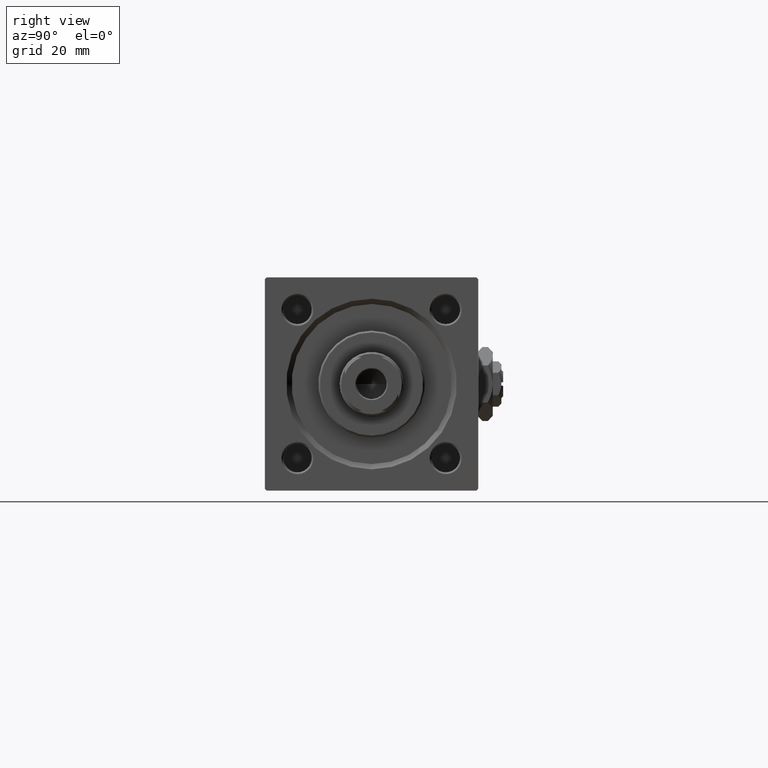
[diagram: clean part render]
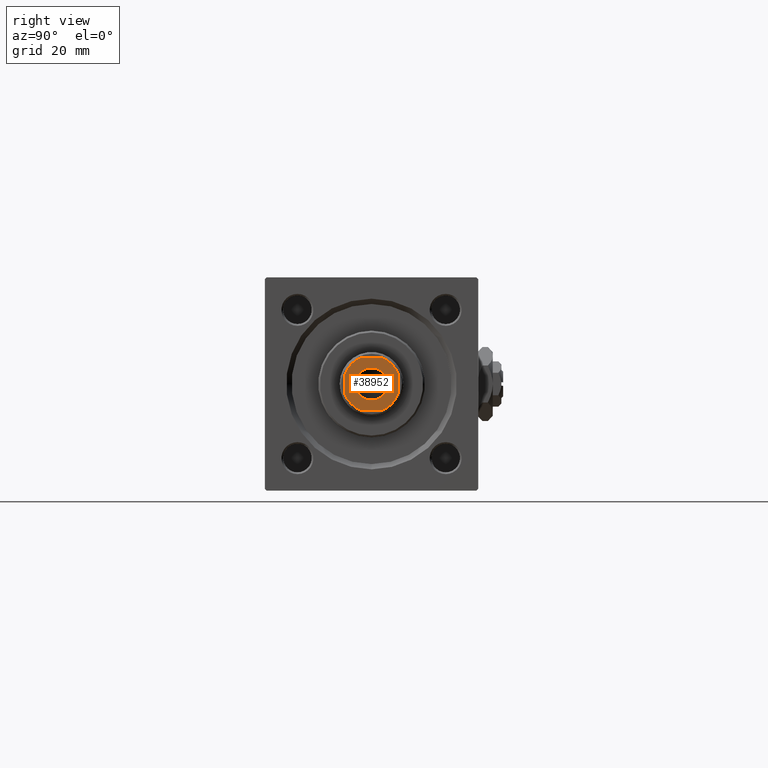
[diagram: same view with one face highlighted and labeled with its STEP entity id]
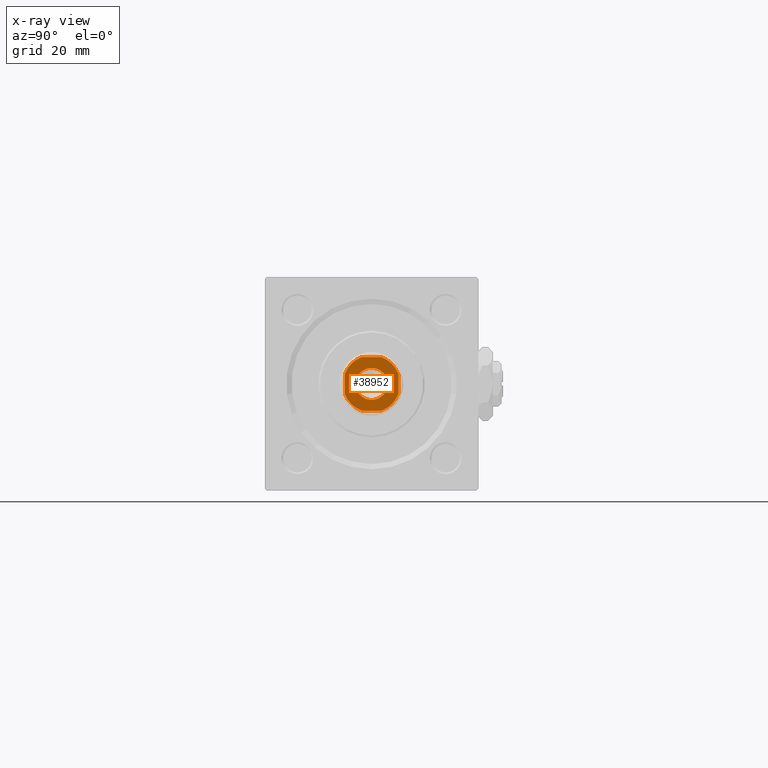
[diagram: x-ray of the same camera — body ghosted, the highlighted face saturated]
A machine part, right view. The second image highlights one B-rep face of the part: STEP entity #38952.
The next image is the same camera in x-ray: the body ghosted, the highlighted face saturated — about 0% of this face is hidden behind the body in this view.
In plain terms, the highlighted planar face has unit normal (1, 0, 0).
Its self-contained STEP definition (entity closure, byte-faithful):
#1006 = DIRECTION ( 'NONE',  ( -0.000000000000000000, 0.000000000000000000, 1.000000000000000000 ) ) ;
#1893 = ORIENTED_EDGE ( 'NONE', *, *, #3704, .T. ) ;
#2255 = EDGE_LOOP ( 'NONE', ( #24796, #1893 ) ) ;
#2456 = VERTEX_POINT ( 'NONE', #40442 ) ;
#2732 = EDGE_CURVE ( 'NONE', #38630, #2456, #28243, .T. ) ;
#3162 = VECTOR ( 'NONE', #30431, 1000.000000000000000 ) ;
#3699 = EDGE_CURVE ( 'NONE', #31487, #21301, #17294, .T. ) ;
#3704 = EDGE_CURVE ( 'NONE', #15670, #38517, #36739, .T. ) ;
#4021 = ORIENTED_EDGE ( 'NONE', *, *, #7168, .T. ) ;
#4225 = VERTEX_POINT ( 'NONE', #42927 ) ;
#4701 = DIRECTION ( 'NONE',  ( 1.000000000000000000, 0.000000000000000000, 0.000000000000000000 ) ) ;
#5310 = DIRECTION ( 'NONE',  ( 1.000000000000000000, 0.000000000000000000, 0.000000000000000000 ) ) ;
#6630 = LINE ( 'NONE', #14309, #3162 ) ;
#7096 = DIRECTION ( 'NONE',  ( 1.000000000000000000, 0.000000000000000000, 0.000000000000000000 ) ) ;
#7105 = VECTOR ( 'NONE', #44812, 1000.000000000000000 ) ;
#7168 = EDGE_CURVE ( 'NONE', #21301, #20116, #38637, .T. ) ;
#7310 = AXIS2_PLACEMENT_3D ( 'NONE', #44757, #16484, #41050 ) ;
#9022 = VERTEX_POINT ( 'NONE', #38795 ) ;
#9232 = FACE_BOUND ( 'NONE', #2255, .T. ) ;
#9633 = CARTESIAN_POINT ( 'NONE',  ( -2.783882181414960577, 7.499999999999999112, 136.0000000000000000 ) ) ;
#9745 = PLANE ( 'NONE',  #47915 ) ;
#10829 = ORIENTED_EDGE ( 'NONE', *, *, #45287, .T. ) ;
#10970 = AXIS2_PLACEMENT_3D ( 'NONE', #11409, #39421, #47881 ) ;
#11409 = CARTESIAN_POINT ( 'NONE',  ( 0.000000000000000000, 0.000000000000000000, 136.0000000000000000 ) ) ;
#12111 = CARTESIAN_POINT ( 'NONE',  ( -7.499999999999998224, -7.500000000000000000, 136.0000000000000000 ) ) ;
#12267 = AXIS2_PLACEMENT_3D ( 'NONE', #33888, #50003, #13809 ) ;
#12827 = ORIENTED_EDGE ( 'NONE', *, *, #38152, .T. ) ;
#12839 = CARTESIAN_POINT ( 'NONE',  ( 7.500000000000000000, 7.500000000000000000, 136.0000000000000000 ) ) ;
#13449 = CARTESIAN_POINT ( 'NONE',  ( -2.783882181414952139, -7.500000000000000000, 136.0000000000000000 ) ) ;
#13809 = DIRECTION ( 'NONE',  ( 1.000000000000000000, 0.000000000000000000, 0.000000000000000000 ) ) ;
#14309 = CARTESIAN_POINT ( 'NONE',  ( -7.500000000000000000, 7.499999999999998224, 136.0000000000000000 ) ) ;
#14800 = ORIENTED_EDGE ( 'NONE', *, *, #27835, .T. ) ;
#14807 = ORIENTED_EDGE ( 'NONE', *, *, #2732, .T. ) ;
#15670 = VERTEX_POINT ( 'NONE', #40595 ) ;
#16012 = LINE ( 'NONE', #12839, #7105 ) ;
#16135 = CARTESIAN_POINT ( 'NONE',  ( 2.783882181415129331, 7.499999999999999112, 136.0000000000000000 ) ) ;
#16352 = CIRCLE ( 'NONE', #31513, 4.549999999999970512 ) ;
#16484 = DIRECTION ( 'NONE',  ( -0.000000000000000000, 0.000000000000000000, 1.000000000000000000 ) ) ;
#17294 = CIRCLE ( 'NONE', #35057, 8.000000000000040856 ) ;
#17763 = EDGE_CURVE ( 'NONE', #51947, #38630, #45573, .T. ) ;
#19003 = CARTESIAN_POINT ( 'NONE',  ( 0.000000000000000000, 0.000000000000000000, 136.0000000000000000 ) ) ;
#20116 = VERTEX_POINT ( 'NONE', #9633 ) ;
#21301 = VERTEX_POINT ( 'NONE', #16135 ) ;
#21705 = ORIENTED_EDGE ( 'NONE', *, *, #3699, .T. ) ;
#21729 = CIRCLE ( 'NONE', #42803, 8.000000000000042633 ) ;
#24462 = EDGE_LOOP ( 'NONE', ( #14800, #21705, #4021, #10829, #40899, #49374, #14807, #12827 ) ) ;
#24796 = ORIENTED_EDGE ( 'NONE', *, *, #27129, .T. ) ;
#25413 = DIRECTION ( 'NONE',  ( 1.000000000000000000, 0.000000000000000000, 0.000000000000000000 ) ) ;
#25866 = CARTESIAN_POINT ( 'NONE',  ( 0.000000000000000000, 0.000000000000000000, 136.0000000000000000 ) ) ;
#25892 = CIRCLE ( 'NONE', #7310, 7.999999999999981348 ) ;
#27129 = EDGE_CURVE ( 'NONE', #38517, #15670, #16352, .T. ) ;
#27835 = EDGE_CURVE ( 'NONE', #9022, #31487, #16012, .T. ) ;
#28243 = LINE ( 'NONE', #12111, #41760 ) ;
#29928 = DIRECTION ( 'NONE',  ( -1.000000000000000000, -1.156482317317871478E-16, -0.000000000000000000 ) ) ;
#30431 = DIRECTION ( 'NONE',  ( 1.156482317317871725E-16, -1.000000000000000000, 0.000000000000000000 ) ) ;
#31487 = VERTEX_POINT ( 'NONE', #43092 ) ;
#31513 = AXIS2_PLACEMENT_3D ( 'NONE', #45745, #33850, #25413 ) ;
#33260 = DIRECTION ( 'NONE',  ( 1.000000000000000000, 0.000000000000000000, 0.000000000000000000 ) ) ;
#33850 = DIRECTION ( 'NONE',  ( 0.000000000000000000, -0.000000000000000000, -1.000000000000000000 ) ) ;
#33888 = CARTESIAN_POINT ( 'NONE',  ( 0.000000000000000000, 0.000000000000000000, 136.0000000000000000 ) ) ;
#34247 = CARTESIAN_POINT ( 'NONE',  ( -7.499999999999997335, -2.783882181414957468, 136.0000000000000000 ) ) ;
#34305 = CARTESIAN_POINT ( 'NONE',  ( 4.549999999999970512, 0.000000000000000000, 136.0000000000000000 ) ) ;
#35057 = AXIS2_PLACEMENT_3D ( 'NONE', #19003, #41802, #7096 ) ;
#36739 = CIRCLE ( 'NONE', #12267, 4.549999999999970512 ) ;
#37539 = DIRECTION ( 'NONE',  ( -0.000000000000000000, 0.000000000000000000, 1.000000000000000000 ) ) ;
#38152 = EDGE_CURVE ( 'NONE', #2456, #9022, #21729, .T. ) ;
#38372 = CARTESIAN_POINT ( 'NONE',  ( -7.500000000000000000, 7.499999999999998224, 136.0000000000000000 ) ) ;
#38517 = VERTEX_POINT ( 'NONE', #34305 ) ;
#38630 = VERTEX_POINT ( 'NONE', #13449 ) ;
#38637 = LINE ( 'NONE', #38372, #39383 ) ;
#38795 = CARTESIAN_POINT ( 'NONE',  ( 7.500000000000000888, -2.783882181415129331, 136.0000000000000000 ) ) ;
#38952 = ADVANCED_FACE ( 'NONE', ( #9232, #41192 ), #9745, .T. ) ;
#39383 = VECTOR ( 'NONE', #29928, 1000.000000000000000 ) ;
#39421 = DIRECTION ( 'NONE',  ( -0.000000000000000000, 0.000000000000000000, 1.000000000000000000 ) ) ;
#40442 = CARTESIAN_POINT ( 'NONE',  ( 2.783882181415132440, -7.500000000000000000, 136.0000000000000000 ) ) ;
#40595 = CARTESIAN_POINT ( 'NONE',  ( -4.549999999999970512, 5.572142936120421828E-16, 136.0000000000000000 ) ) ;
#40899 = ORIENTED_EDGE ( 'NONE', *, *, #47583, .T. ) ;
#41050 = DIRECTION ( 'NONE',  ( 1.000000000000000000, 0.000000000000000000, 0.000000000000000000 ) ) ;
#41192 = FACE_OUTER_BOUND ( 'NONE', #24462, .T. ) ;
#41760 = VECTOR ( 'NONE', #4701, 1000.000000000000000 ) ;
#41802 = DIRECTION ( 'NONE',  ( -0.000000000000000000, 0.000000000000000000, 1.000000000000000000 ) ) ;
#42803 = AXIS2_PLACEMENT_3D ( 'NONE', #46532, #37539, #5310 ) ;
#42927 = CARTESIAN_POINT ( 'NONE',  ( -7.499999999999999112, 2.783882181414961021, 136.0000000000000000 ) ) ;
#43092 = CARTESIAN_POINT ( 'NONE',  ( 7.500000000000000888, 2.783882181415126222, 136.0000000000000000 ) ) ;
#44757 = CARTESIAN_POINT ( 'NONE',  ( 0.000000000000000000, 0.000000000000000000, 136.0000000000000000 ) ) ;
#44812 = DIRECTION ( 'NONE',  ( -1.156482317317871478E-16, 1.000000000000000000, -0.000000000000000000 ) ) ;
#45287 = EDGE_CURVE ( 'NONE', #20116, #4225, #25892, .T. ) ;
#45573 = CIRCLE ( 'NONE', #10970, 7.999999999999979572 ) ;
#45745 = CARTESIAN_POINT ( 'NONE',  ( 0.000000000000000000, 0.000000000000000000, 136.0000000000000000 ) ) ;
#46532 = CARTESIAN_POINT ( 'NONE',  ( 0.000000000000000000, 0.000000000000000000, 136.0000000000000000 ) ) ;
#47583 = EDGE_CURVE ( 'NONE', #4225, #51947, #6630, .T. ) ;
#47881 = DIRECTION ( 'NONE',  ( 1.000000000000000000, 0.000000000000000000, 0.000000000000000000 ) ) ;
#47915 = AXIS2_PLACEMENT_3D ( 'NONE', #25866, #1006, #33260 ) ;
#49374 = ORIENTED_EDGE ( 'NONE', *, *, #17763, .T. ) ;
#50003 = DIRECTION ( 'NONE',  ( 0.000000000000000000, -0.000000000000000000, -1.000000000000000000 ) ) ;
#51947 = VERTEX_POINT ( 'NONE', #34247 ) ;